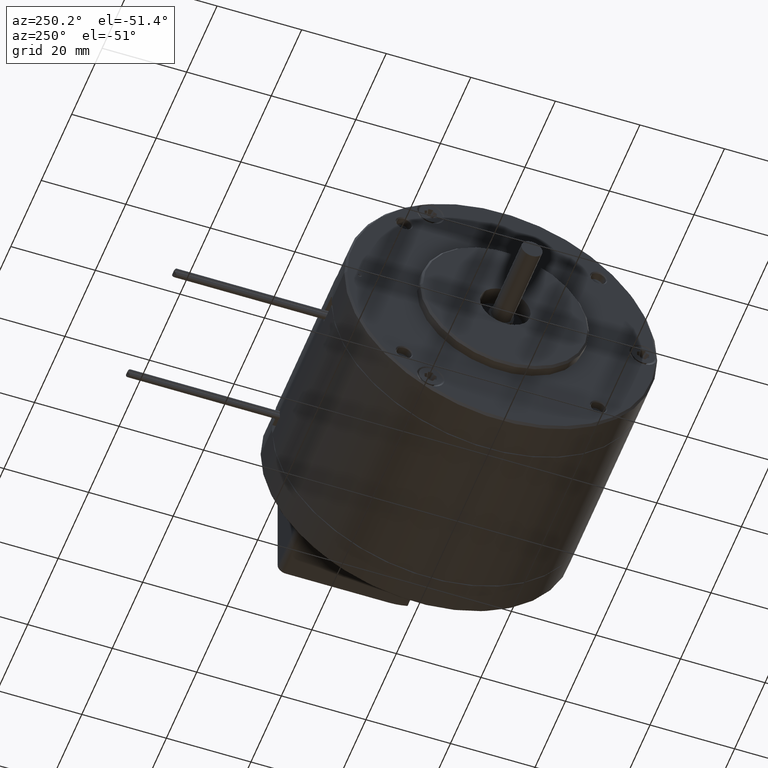
[diagram: clean part render]
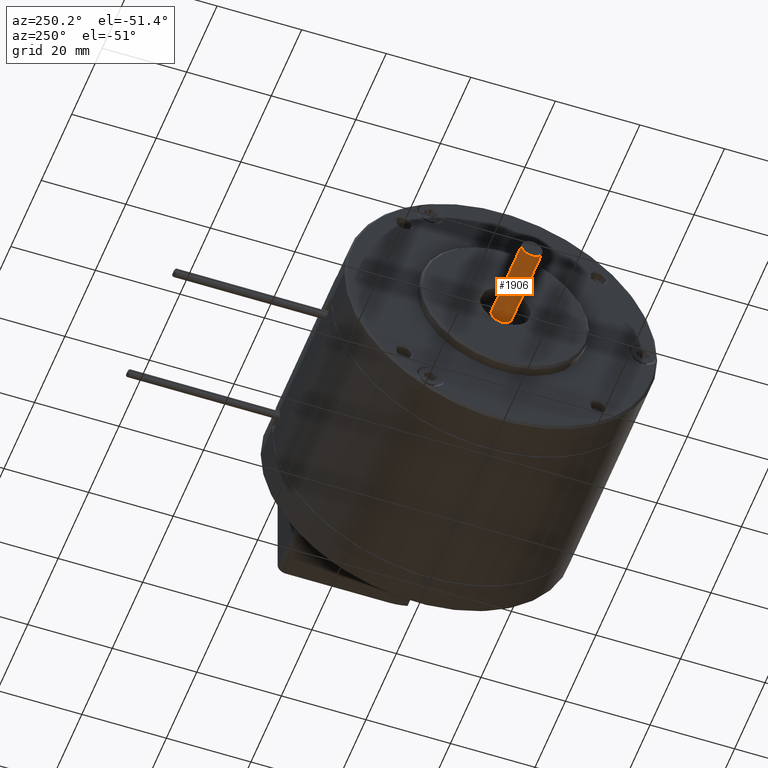
[diagram: same view with one face highlighted and labeled with its STEP entity id]
A machine part, auxiliary view. The second image highlights one B-rep face of the part: STEP entity #1906.
In plain terms, the highlighted cylindrical surface (edge-blend (fillet) strip) has radius 2.5 mm, axis along (1, 0, 0).
Its self-contained STEP definition (entity closure, byte-faithful):
#1808=CARTESIAN_POINT('',(0.E0,0.E0,0.E0));
#1809=DIRECTION('',(-1.E0,0.E0,0.E0));
#1810=DIRECTION('',(0.E0,1.E0,0.E0));
#1811=AXIS2_PLACEMENT_3D('',#1808,#1809,#1810);
#1818=DIRECTION('',(-1.E0,0.E0,0.E0));
#1819=VECTOR('',#1818,2.E1);
#1820=CARTESIAN_POINT('',(2.E1,2.5E0,0.E0));
#1821=LINE('',#1820,#1819);
#1822=DIRECTION('',(-1.E0,0.E0,0.E0));
#1823=VECTOR('',#1822,2.E1);
#1824=CARTESIAN_POINT('',(2.E1,-2.5E0,0.E0));
#1825=LINE('',#1824,#1823);
#1826=CARTESIAN_POINT('',(2.E1,0.E0,0.E0));
#1827=DIRECTION('',(-1.E0,0.E0,0.E0));
#1828=DIRECTION('',(0.E0,1.E0,0.E0));
#1829=AXIS2_PLACEMENT_3D('',#1826,#1827,#1828);
#1864=CARTESIAN_POINT('',(2.E1,2.5E0,0.E0));
#1865=CARTESIAN_POINT('',(0.E0,2.5E0,0.E0));
#1866=VERTEX_POINT('',#1864);
#1867=VERTEX_POINT('',#1865);
#1868=CARTESIAN_POINT('',(2.E1,-2.5E0,0.E0));
#1869=CARTESIAN_POINT('',(0.E0,-2.5E0,0.E0));
#1870=VERTEX_POINT('',#1868);
#1871=VERTEX_POINT('',#1869);
#1892=CARTESIAN_POINT('',(-4.5E0,0.E0,0.E0));
#1893=DIRECTION('',(1.E0,0.E0,0.E0));
#1894=DIRECTION('',(0.E0,-1.E0,0.E0));
#1895=AXIS2_PLACEMENT_3D('',#1892,#1893,#1894);
#1896=CYLINDRICAL_SURFACE('',#1895,2.5E0);
#1898=ORIENTED_EDGE('',*,*,#1897,.T.);
#1899=ORIENTED_EDGE('',*,*,#1885,.T.);
#1901=ORIENTED_EDGE('',*,*,#1900,.F.);
#1903=ORIENTED_EDGE('',*,*,#1902,.F.);
#1904=EDGE_LOOP('',(#1898,#1899,#1901,#1903));
#1905=FACE_OUTER_BOUND('',#1904,.F.);
#1906=ADVANCED_FACE('',(#1905),#1896,.T.);
#1812=CIRCLE('',#1811,2.5E0);
#1830=CIRCLE('',#1829,2.5E0);
#1885=EDGE_CURVE('',#1867,#1871,#1812,.T.);
#1897=EDGE_CURVE('',#1866,#1867,#1821,.T.);
#1900=EDGE_CURVE('',#1870,#1871,#1825,.T.);
#1902=EDGE_CURVE('',#1866,#1870,#1830,.T.);